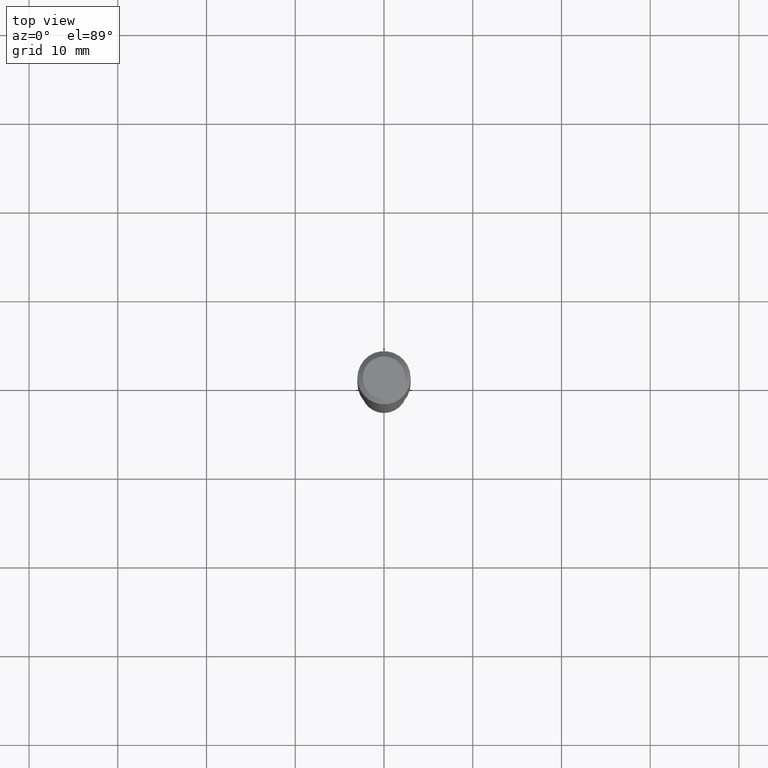
[diagram: clean part render]
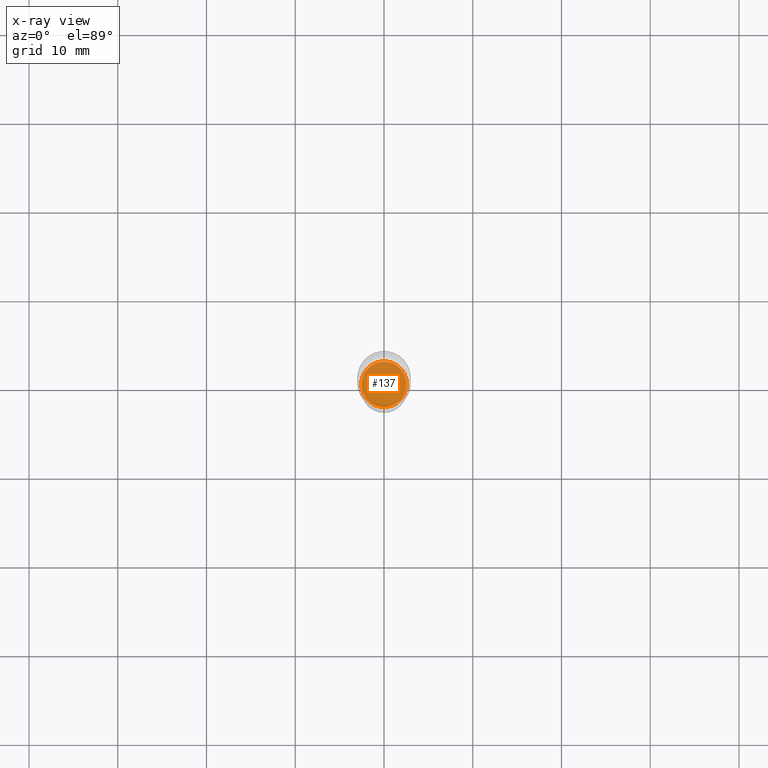
[diagram: x-ray — body ghosted, one internal face saturated and labeled with its STEP entity id]
A machine part, top view, then the same camera in x-ray: the body is ghosted and one INTERNAL B-rep face — a face not visible from any outside direction — is saturated and labeled: STEP entity #137.
In plain terms, the highlighted planar face has unit normal (-0, 0, 1).
Its self-contained STEP definition (entity closure, byte-faithful):
#1 = ORIENTED_EDGE ( 'NONE', *, *, #162, .F. ) ;
#27 = VERTEX_POINT ( 'NONE', #470 ) ;
#38 = CARTESIAN_POINT ( 'NONE',  ( 0.1010500000000000009, -6.638004321408586283E-15, -1.699100000000000277 ) ) ;
#47 = DIRECTION ( 'NONE',  ( -2.445468806185136597E-29, 3.491481338843145583E-15, 1.000000000000000000 ) ) ;
#69 = AXIS2_PLACEMENT_3D ( 'NONE', #280, #47, #422 ) ;
#79 = PLANE ( 'NONE',  #201 ) ;
#137 = ADVANCED_FACE ( 'NONE', ( #230 ), #79, .F. ) ;
#147 = DIRECTION ( 'NONE',  ( 1.000000000000000000, -6.982962677686269077E-15, 0.000000000000000000 ) ) ;
#156 = CIRCLE ( 'NONE', #69, 0.1010500000000000009 ) ;
#162 = EDGE_CURVE ( 'NONE', #27, #224, #156, .T. ) ;
#188 = DIRECTION ( 'NONE',  ( 1.000000000000000000, -6.982962677686265922E-15, 4.876176775795935793E-29 ) ) ;
#191 = CIRCLE ( 'NONE', #302, 0.1010500000000000009 ) ;
#201 = AXIS2_PLACEMENT_3D ( 'NONE', #225, #383, #188 ) ;
#224 = VERTEX_POINT ( 'NONE', #38 ) ;
#225 = CARTESIAN_POINT ( 'NONE',  ( 4.155096048589166181E-29, -5.932375942828389297E-15, -1.699100000000000277 ) ) ;
#230 = FACE_OUTER_BOUND ( 'NONE', #425, .T. ) ;
#280 = CARTESIAN_POINT ( 'NONE',  ( 4.155096048589166181E-29, -5.932375942828389297E-15, -1.699100000000000277 ) ) ;
#302 = AXIS2_PLACEMENT_3D ( 'NONE', #405, #368, #147 ) ;
#368 = DIRECTION ( 'NONE',  ( -2.445468806185136597E-29, 3.491481338843145583E-15, 1.000000000000000000 ) ) ;
#383 = DIRECTION ( 'NONE',  ( -2.438088387897960049E-29, 3.491481338843145188E-15, 1.000000000000000000 ) ) ;
#405 = CARTESIAN_POINT ( 'NONE',  ( 4.155096048589166181E-29, -5.932375942828389297E-15, -1.699100000000000277 ) ) ;
#422 = DIRECTION ( 'NONE',  ( 1.000000000000000000, -6.982962677686269077E-15, 0.000000000000000000 ) ) ;
#425 = EDGE_LOOP ( 'NONE', ( #443, #1 ) ) ;
#435 = EDGE_CURVE ( 'NONE', #224, #27, #191, .T. ) ;
#443 = ORIENTED_EDGE ( 'NONE', *, *, #435, .F. ) ;
#470 = CARTESIAN_POINT ( 'NONE',  ( -0.1010500000000000009, -5.211723281168696260E-15, -1.699100000000000277 ) ) ;